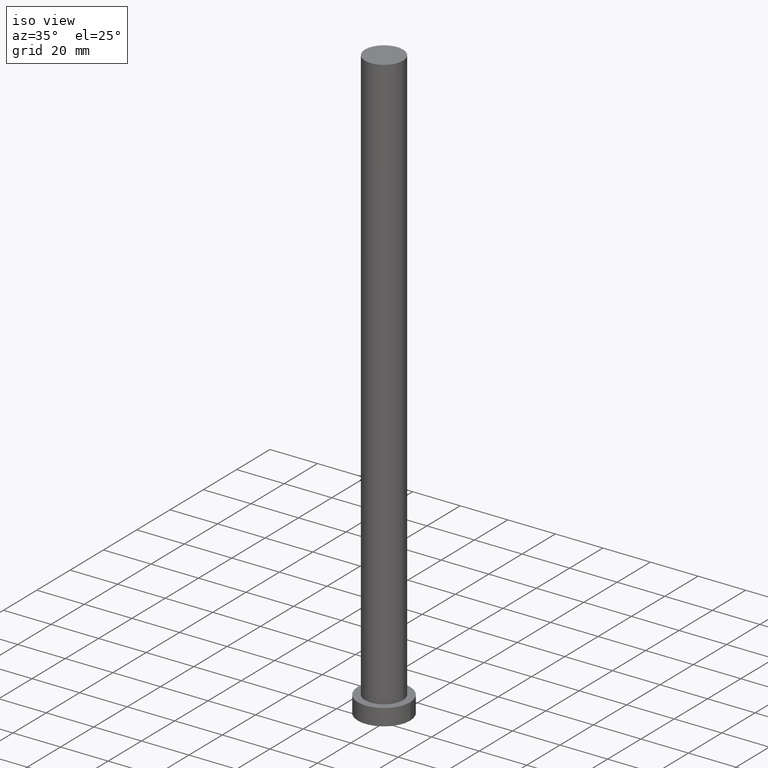
[diagram: clean part render]
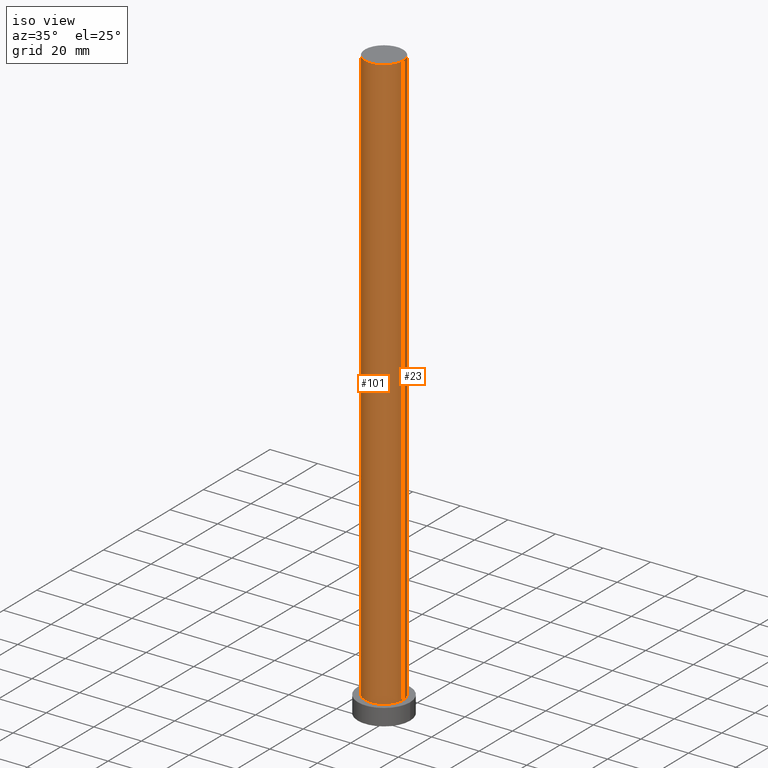
[diagram: same view with one multi-face feature highlighted, each face labeled with its STEP entity id]
A machine part, iso view. The highlighted faces form ONE feature: a constant-radius fillet chain: 2 tangent blend faces with common blend radius 8 mm. The faces share edges in the B-rep.
Their STEP definitions:
[1] entity #23 (Cylinder):
#14 = ORIENTED_EDGE ( 'NONE', *, *, #162, .T. ) ;
#16 = DIRECTION ( 'NONE',  ( -1.000000000000000000, 0.000000000000000000, 0.000000000000000000 ) ) ;
#20 = CARTESIAN_POINT ( 'NONE',  ( 8.000000000000000000, 9.797174393178825657E-16, 250.0000000000000000 ) ) ;
#23 = ADVANCED_FACE ( 'NONE', ( #135 ), #216, .T. ) ;
#24 = DIRECTION ( 'NONE',  ( -0.000000000000000000, -0.000000000000000000, -1.000000000000000000 ) ) ;
#28 = DIRECTION ( 'NONE',  ( -0.000000000000000000, -0.000000000000000000, -1.000000000000000000 ) ) ;
#29 = CARTESIAN_POINT ( 'NONE',  ( 0.000000000000000000, 0.000000000000000000, 250.0000000000000000 ) ) ;
#33 = DIRECTION ( 'NONE',  ( 1.000000000000000000, 0.000000000000000000, 0.000000000000000000 ) ) ;
#37 = VERTEX_POINT ( 'NONE', #67 ) ;
#40 = VERTEX_POINT ( 'NONE', #109 ) ;
#54 = LINE ( 'NONE', #129, #227 ) ;
#67 = CARTESIAN_POINT ( 'NONE',  ( -8.000000000000000000, 0.000000000000000000, 7.000000000000000000 ) ) ;
#68 = CARTESIAN_POINT ( 'NONE',  ( -8.000000000000000000, 0.000000000000000000, 250.0000000000000000 ) ) ;
#90 = CARTESIAN_POINT ( 'NONE',  ( 0.000000000000000000, 0.000000000000000000, 7.000000000000000000 ) ) ;
#102 = AXIS2_PLACEMENT_3D ( 'NONE', #119, #199, #16 ) ;
#108 = AXIS2_PLACEMENT_3D ( 'NONE', #90, #228, #110 ) ;
#109 = CARTESIAN_POINT ( 'NONE',  ( 8.000000000000000000, 9.797174393178825657E-16, 250.0000000000000000 ) ) ;
#110 = DIRECTION ( 'NONE',  ( 1.000000000000000000, 0.000000000000000000, 0.000000000000000000 ) ) ;
#118 = VECTOR ( 'NONE', #24, 1000.000000000000000 ) ;
#119 = CARTESIAN_POINT ( 'NONE',  ( 0.000000000000000000, 0.000000000000000000, 250.0000000000000000 ) ) ;
#129 = CARTESIAN_POINT ( 'NONE',  ( -8.000000000000000000, 0.000000000000000000, 250.0000000000000000 ) ) ;
#130 = DIRECTION ( 'NONE',  ( 0.000000000000000000, 0.000000000000000000, 1.000000000000000000 ) ) ;
#134 = EDGE_LOOP ( 'NONE', ( #253, #14, #242, #150 ) ) ;
#135 = FACE_OUTER_BOUND ( 'NONE', #134, .T. ) ;
#147 = AXIS2_PLACEMENT_3D ( 'NONE', #29, #130, #33 ) ;
#150 = ORIENTED_EDGE ( 'NONE', *, *, #235, .F. ) ;
#162 = EDGE_CURVE ( 'NONE', #40, #177, #225, .T. ) ;
#177 = VERTEX_POINT ( 'NONE', #207 ) ;
#185 = CIRCLE ( 'NONE', #147, 8.000000000000000000 ) ;
#199 = DIRECTION ( 'NONE',  ( -0.000000000000000000, -0.000000000000000000, -1.000000000000000000 ) ) ;
#207 = CARTESIAN_POINT ( 'NONE',  ( 8.000000000000000000, 9.797174393178825657E-16, 7.000000000000000000 ) ) ;
#215 = CIRCLE ( 'NONE', #108, 8.000000000000000000 ) ;
#216 = CYLINDRICAL_SURFACE ( 'NONE', #102, 8.000000000000000000 ) ;
#225 = LINE ( 'NONE', #20, #118 ) ;
#227 = VECTOR ( 'NONE', #28, 1000.000000000000000 ) ;
#228 = DIRECTION ( 'NONE',  ( 0.000000000000000000, 0.000000000000000000, 1.000000000000000000 ) ) ;
#235 = EDGE_CURVE ( 'NONE', #236, #37, #54, .T. ) ;
#236 = VERTEX_POINT ( 'NONE', #68 ) ;
#242 = ORIENTED_EDGE ( 'NONE', *, *, #249, .T. ) ;
#249 = EDGE_CURVE ( 'NONE', #177, #37, #215, .T. ) ;
#251 = EDGE_CURVE ( 'NONE', #40, #236, #185, .T. ) ;
#253 = ORIENTED_EDGE ( 'NONE', *, *, #251, .F. ) ;
[2] entity #101 (Cylinder):
#4 = CYLINDRICAL_SURFACE ( 'NONE', #45, 8.000000000000000000 ) ;
#5 = AXIS2_PLACEMENT_3D ( 'NONE', #46, #47, #141 ) ;
#20 = CARTESIAN_POINT ( 'NONE',  ( 8.000000000000000000, 9.797174393178825657E-16, 250.0000000000000000 ) ) ;
#24 = DIRECTION ( 'NONE',  ( -0.000000000000000000, -0.000000000000000000, -1.000000000000000000 ) ) ;
#28 = DIRECTION ( 'NONE',  ( -0.000000000000000000, -0.000000000000000000, -1.000000000000000000 ) ) ;
#37 = VERTEX_POINT ( 'NONE', #67 ) ;
#40 = VERTEX_POINT ( 'NONE', #109 ) ;
#45 = AXIS2_PLACEMENT_3D ( 'NONE', #161, #241, #182 ) ;
#46 = CARTESIAN_POINT ( 'NONE',  ( 0.000000000000000000, 0.000000000000000000, 7.000000000000000000 ) ) ;
#47 = DIRECTION ( 'NONE',  ( 0.000000000000000000, 0.000000000000000000, 1.000000000000000000 ) ) ;
#54 = LINE ( 'NONE', #129, #227 ) ;
#64 = DIRECTION ( 'NONE',  ( 1.000000000000000000, 0.000000000000000000, 0.000000000000000000 ) ) ;
#66 = EDGE_CURVE ( 'NONE', #236, #40, #133, .T. ) ;
#67 = CARTESIAN_POINT ( 'NONE',  ( -8.000000000000000000, 0.000000000000000000, 7.000000000000000000 ) ) ;
#68 = CARTESIAN_POINT ( 'NONE',  ( -8.000000000000000000, 0.000000000000000000, 250.0000000000000000 ) ) ;
#72 = ORIENTED_EDGE ( 'NONE', *, *, #235, .T. ) ;
#75 = EDGE_LOOP ( 'NONE', ( #196, #100, #72, #157 ) ) ;
#83 = CARTESIAN_POINT ( 'NONE',  ( 0.000000000000000000, 0.000000000000000000, 250.0000000000000000 ) ) ;
#100 = ORIENTED_EDGE ( 'NONE', *, *, #66, .F. ) ;
#101 = ADVANCED_FACE ( 'NONE', ( #145 ), #4, .T. ) ;
#109 = CARTESIAN_POINT ( 'NONE',  ( 8.000000000000000000, 9.797174393178825657E-16, 250.0000000000000000 ) ) ;
#117 = EDGE_CURVE ( 'NONE', #37, #177, #152, .T. ) ;
#118 = VECTOR ( 'NONE', #24, 1000.000000000000000 ) ;
#129 = CARTESIAN_POINT ( 'NONE',  ( -8.000000000000000000, 0.000000000000000000, 250.0000000000000000 ) ) ;
#133 = CIRCLE ( 'NONE', #230, 8.000000000000000000 ) ;
#141 = DIRECTION ( 'NONE',  ( 1.000000000000000000, 0.000000000000000000, 0.000000000000000000 ) ) ;
#145 = FACE_OUTER_BOUND ( 'NONE', #75, .T. ) ;
#152 = CIRCLE ( 'NONE', #5, 8.000000000000000000 ) ;
#157 = ORIENTED_EDGE ( 'NONE', *, *, #117, .T. ) ;
#161 = CARTESIAN_POINT ( 'NONE',  ( 0.000000000000000000, 0.000000000000000000, 250.0000000000000000 ) ) ;
#162 = EDGE_CURVE ( 'NONE', #40, #177, #225, .T. ) ;
#177 = VERTEX_POINT ( 'NONE', #207 ) ;
#182 = DIRECTION ( 'NONE',  ( -1.000000000000000000, 0.000000000000000000, 0.000000000000000000 ) ) ;
#196 = ORIENTED_EDGE ( 'NONE', *, *, #162, .F. ) ;
#207 = CARTESIAN_POINT ( 'NONE',  ( 8.000000000000000000, 9.797174393178825657E-16, 7.000000000000000000 ) ) ;
#224 = DIRECTION ( 'NONE',  ( 0.000000000000000000, 0.000000000000000000, 1.000000000000000000 ) ) ;
#225 = LINE ( 'NONE', #20, #118 ) ;
#227 = VECTOR ( 'NONE', #28, 1000.000000000000000 ) ;
#230 = AXIS2_PLACEMENT_3D ( 'NONE', #83, #224, #64 ) ;
#235 = EDGE_CURVE ( 'NONE', #236, #37, #54, .T. ) ;
#236 = VERTEX_POINT ( 'NONE', #68 ) ;
#241 = DIRECTION ( 'NONE',  ( -0.000000000000000000, -0.000000000000000000, -1.000000000000000000 ) ) ;